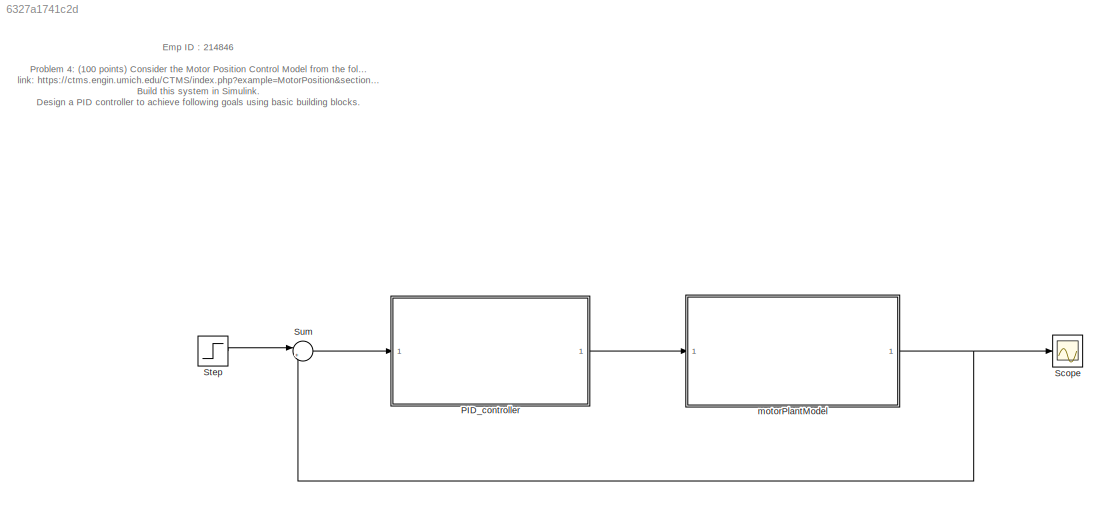
MODEL slx_6327a1741c2d
KIND model
CONFIG AbsTol = auto
CONFIG EnableMultiTasking = off
CONFIG FixedStep = auto
CONFIG MaxStep = auto
CONFIG MinStep = auto
CONFIG RelTol = 1e-3
CONFIG SampleTimeConstraint = Unconstrained
CONFIG Solver = VariableStepAuto
CONFIG SolverName = VariableStepAuto
CONFIG StartTime = 0.0
CONFIG StopTime = 10
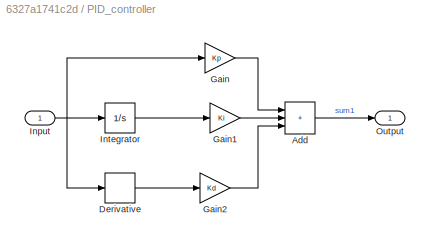
BLOCK [SubSystem] PID_controller
  Ports = [1, 1]
  RequestExecContextInheritance = off
BLOCK [Sum] PID_controller/Add
  IconShape = rectangular
  Inputs = +++
  Ports = [3, 1]
BLOCK [Derivative] PID_controller/Derivative
BLOCK [Gain] PID_controller/Gain
  Gain = Kp
BLOCK [Gain] PID_controller/Gain1
  Gain = Ki
BLOCK [Gain] PID_controller/Gain2
  Gain = Kd
BLOCK [Inport] PID_controller/Input
BLOCK [Integrator] PID_controller/Integrator
  Ports = [1, 1]
BLOCK [Outport] PID_controller/Output
BLOCK [Scope] Scope
  Floating = off
  NumInputPorts = 1
  Ports = [1]
  ScopeSpecificationString = Simulink.scopes.TimeScopeBlockCfg('CurrentConfiguration', extmgr.ConfigurationSet(extmgr.Configuration('Core','General UI',true),extmgr.Configuration('Core','Source UI',true),extmgr.Configuration('Sources','WiredSimulink',true),extmgr.Configuration('Visuals','Time Domain',true,'SerializedDisplays',{struct('MinYLimReal','-0.1507','MaxYLimReal','1.35628','YLabelReal','','MinYLimMag','0.00000','MaxYL...<+1357ch>
BLOCK [Step] Step
  SampleTime = 0
BLOCK [Sum] Sum
  Inputs = |+-
  Ports = [2, 1]
BLOCK [ModelReference] motorPlantModel
  ModelNameDialog = motorPlantModel
  ModelReferenceVersion = 1.14
  Ports = [1, 1]
ANNOTATION (root): Emp ID : 214846 Problem 4: (100 points) Consider the Motor Position Control Model from the following link: https://ctms.engin.umich.edu/CTMS/index.php?example=MotorPosition&section=SimulinkModeling Build this system in Simulink. Design a PID controller to achieve following goals using basic building blocks. For a 1-radian step reference, the design criteria are given are the following. • Settling ...<+212ch>
LINE PID_controller/Add:1 -> PID_controller/Output:1
LINE PID_controller/Derivative:1 -> PID_controller/Gain2:1
LINE PID_controller/Gain1:1 -> PID_controller/Add:2
LINE PID_controller/Gain2:1 -> PID_controller/Add:3
LINE PID_controller/Gain:1 -> PID_controller/Add:1
NET PID_controller/Input:1 -> PID_controller/Derivative:1, PID_controller/Gain:1, PID_controller/Integrator:1
LINE PID_controller/Integrator:1 -> PID_controller/Gain1:1
LINE PID_controller:1 -> motorPlantModel:1
LINE Step:1 -> Sum:1
LINE Sum:1 -> PID_controller:1
NET motorPlantModel:1 -> Scope:1, Sum:2
note: NET lines group one-source signal fan-out (src -> all destinations, sorted); 1:1 wires keep LINE
